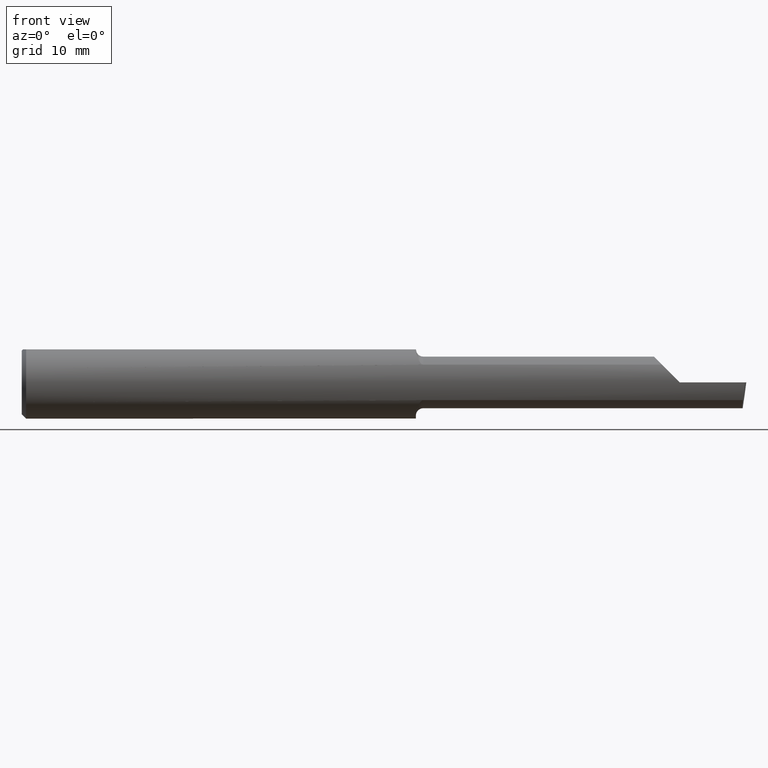
[diagram: clean part render]
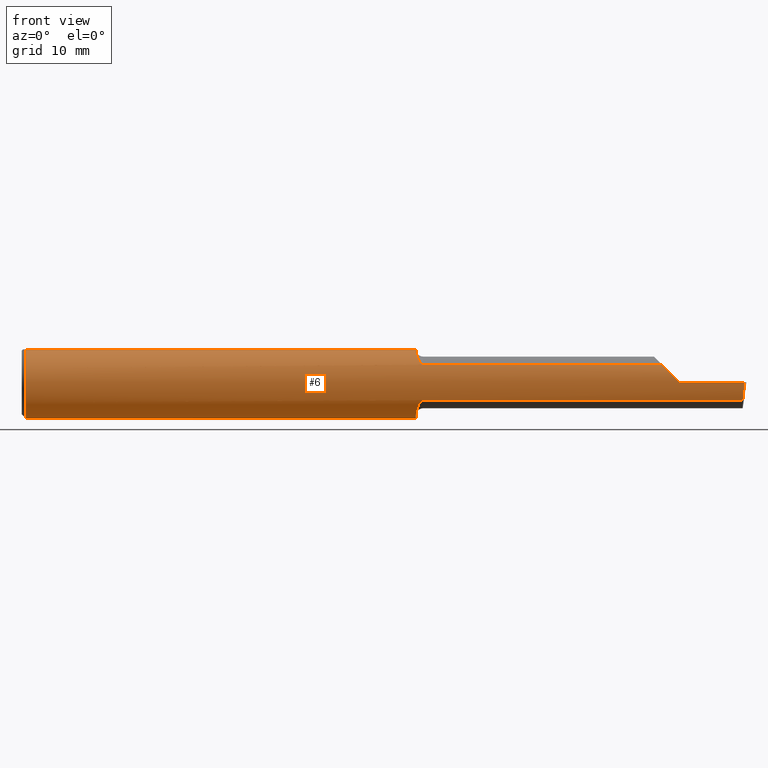
[diagram: same view with one face highlighted and labeled with its STEP entity id]
A machine part, front view. The second image highlights one B-rep face of the part: STEP entity #6.
In plain terms, the highlighted cylindrical surface (edge-blend (fillet) strip) has radius 3.1712 mm, axis along (-1, -0, -0).
Its self-contained STEP definition (entity closure, byte-faithful):
#4 = ORIENTED_EDGE ( 'NONE', *, *, #695, .T. ) ;
#6 = ADVANCED_FACE ( 'NONE', ( #36 ), #538, .T. ) ;
#11 = EDGE_LOOP ( 'NONE', ( #612, #638, #177, #187, #800, #686, #4, #400, #539, #514, #28, #526 ) ) ;
#12 = VERTEX_POINT ( 'NONE', #724 ) ;
#19 = EDGE_CURVE ( 'NONE', #388, #64, #153, .T. ) ;
#28 = ORIENTED_EDGE ( 'NONE', *, *, #417, .F. ) ;
#31 = LINE ( 'NONE', #731, #491 ) ;
#35 = DIRECTION ( 'NONE',  ( 0.000000000000000000, 0.000000000000000000, 1.000000000000000000 ) ) ;
#36 = FACE_OUTER_BOUND ( 'NONE', #11, .T. ) ;
#41 = CARTESIAN_POINT ( 'NONE',  ( 1.361949480984350425, -0.07596136197082524466, 0.09933958580654496384 ) ) ;
#47 = DIRECTION ( 'NONE',  ( -1.000000000000000000, -0.000000000000000000, -0.000000000000000000 ) ) ;
#53 = CARTESIAN_POINT ( 'NONE',  ( 1.381429951084914842, -0.1083820298415333616, 0.06198549150327745810 ) ) ;
#60 = CARTESIAN_POINT ( 'NONE',  ( 2.208790356734260829, -0.1088159090909091992, 0.06120964326573857806 ) ) ;
#64 = VERTEX_POINT ( 'NONE', #275 ) ;
#74 = CARTESIAN_POINT ( 'NONE',  ( 1.360000000000000320, -0.05106022727272754858, -0.1139314517192570597 ) ) ;
#78 = CARTESIAN_POINT ( 'NONE',  ( 1.360000097795984741, -0.05124158467554382895, 0.1138500000000000345 ) ) ;
#87 = CARTESIAN_POINT ( 'NONE',  ( 0.000000000000000000, 0.000000000000000000, 0.000000000000000000 ) ) ;
#89 = CARTESIAN_POINT ( 'NONE',  ( 0.01499999999999999424, 0.05124158467494922820, 0.1138500000000000345 ) ) ;
#93 = DIRECTION ( 'NONE',  ( 1.000000000000000000, 0.000000000000000000, 0.000000000000000000 ) ) ;
#95 = CARTESIAN_POINT ( 'NONE',  ( 1.381430773366643772, -0.1083837666170487657, -0.06198269038834018640 ) ) ;
#101 = CARTESIAN_POINT ( 'NONE',  ( 1.363123628621569994, -0.08156933505717116339, 0.09478144068341098905 ) ) ;
#104 = CARTESIAN_POINT ( 'NONE',  ( 1.834999999999999964, -0.1088159090909092547, -0.06120964326573859193 ) ) ;
#113 = CARTESIAN_POINT ( 'NONE',  ( 1.385000000000000009, -0.1088159090909091020, 0.06120964326573865438 ) ) ;
#136 = AXIS2_PLACEMENT_3D ( 'NONE', #409, #274, #35 ) ;
#153 = LINE ( 'NONE', #788, #202 ) ;
#165 = CARTESIAN_POINT ( 'NONE',  ( 1.374298474000562376, -0.1041086701288377048, 0.06897617952030529742 ) ) ;
#169 = CARTESIAN_POINT ( 'NONE',  ( 2.270000000000000018, -0.1248500000000000165, 2.816687638038912303E-17 ) ) ;
#177 = ORIENTED_EDGE ( 'NONE', *, *, #238, .T. ) ;
#187 = ORIENTED_EDGE ( 'NONE', *, *, #506, .T. ) ;
#189 = AXIS2_PLACEMENT_3D ( 'NONE', #554, #47, #290 ) ;
#200 =( BOUNDED_CURVE ( )  B_SPLINE_CURVE ( 3, ( #387, #763, #769, #60 ),
 .UNSPECIFIED., .F., .T. ) 
 B_SPLINE_CURVE_WITH_KNOTS ( ( 4, 4 ),
 ( 4.712388980384689674, 5.224783288303638251 ),
 .UNSPECIFIED. ) 
 CURVE ( )  GEOMETRIC_REPRESENTATION_ITEM ( )  RATIONAL_B_SPLINE_CURVE ( ( 1.000000000000000000, 0.9782404171696015283, 0.9782404171696015283, 1.000000000000000000 ) ) 
 REPRESENTATION_ITEM ( '' )  );
#202 = VECTOR ( 'NONE', #93, 39.37007874015748143 ) ;
#209 = VERTEX_POINT ( 'NONE', #305 ) ;
#218 = CIRCLE ( 'NONE', #540, 0.1248500000000000026 ) ;
#232 = VECTOR ( 'NONE', #367, 39.37007874015748143 ) ;
#236 = CARTESIAN_POINT ( 'NONE',  ( 1.360007259122735901, -0.05787968516969613231, 0.1108623250892746270 ) ) ;
#238 = EDGE_CURVE ( 'NONE', #519, #239, #740, .T. ) ;
#239 = VERTEX_POINT ( 'NONE', #169 ) ;
#274 = DIRECTION ( 'NONE',  ( -1.000000000000000000, -0.000000000000000000, -0.000000000000000000 ) ) ;
#275 = CARTESIAN_POINT ( 'NONE',  ( 1.360000000000000320, 0.05124158467494921432, 0.1138500000000000206 ) ) ;
#290 = DIRECTION ( 'NONE',  ( 0.000000000000000000, 0.000000000000000000, 1.000000000000000000 ) ) ;
#293 = CARTESIAN_POINT ( 'NONE',  ( 1.366367198475050282, -0.09170680217278594226, 0.08501141308632335913 ) ) ;
#294 =( BOUNDED_CURVE ( )  B_SPLINE_CURVE ( 3, ( #384, #592, #398, #596 ),
 .UNSPECIFIED., .F., .T. ) 
 B_SPLINE_CURVE_WITH_KNOTS ( ( 4, 4 ),
 ( 0.8483525745957783970, 1.360746882514726197 ),
 .UNSPECIFIED. ) 
 CURVE ( )  GEOMETRIC_REPRESENTATION_ITEM ( )  RATIONAL_B_SPLINE_CURVE ( ( 1.000000000000000000, 0.9782404171696016393, 0.9782404171696016393, 1.000000000000000000 ) ) 
 REPRESENTATION_ITEM ( '' )  );
#305 = CARTESIAN_POINT ( 'NONE',  ( 2.208790356734260829, -0.1088159090909091992, 0.06120964326573857806 ) ) ;
#324 = CARTESIAN_POINT ( 'NONE',  ( 1.377418472017428730, -0.1064706388662828851, -0.06522095769404988308 ) ) ;
#341 = EDGE_CURVE ( 'NONE', #684, #519, #294, .T. ) ;
#346 = DIRECTION ( 'NONE',  ( 0.000000000000000000, 0.000000000000000000, -1.000000000000000000 ) ) ;
#358 = CARTESIAN_POINT ( 'NONE',  ( 1.377431632364403580, -0.1064782986023076888, 0.06520809716638668874 ) ) ;
#367 = DIRECTION ( 'NONE',  ( -1.000000000000000000, -0.000000000000000000, -0.000000000000000000 ) ) ;
#369 = VECTOR ( 'NONE', #664, 39.37007874015748143 ) ;
#372 = EDGE_CURVE ( 'NONE', #396, #209, #722, .T. ) ;
#381 = CARTESIAN_POINT ( 'NONE',  ( 1.374260533375047055, -0.1040753176265711150, -0.06902783361385357586 ) ) ;
#384 = CARTESIAN_POINT ( 'NONE',  ( 2.487716879513912627, -0.1088159090909092547, -0.06120964326573859193 ) ) ;
#385 = CARTESIAN_POINT ( 'NONE',  ( 2.494815187529301426, -0.1248500000000000304, -6.610128768667490488E-17 ) ) ;
#387 = CARTESIAN_POINT ( 'NONE',  ( 2.270000000000000018, -0.1248500000000000165, 2.816687638038912303E-17 ) ) ;
#388 = VERTEX_POINT ( 'NONE', #89 ) ;
#396 = VERTEX_POINT ( 'NONE', #650 ) ;
#398 = CARTESIAN_POINT ( 'NONE',  ( 2.492166948426750128, -0.1248500000000000026, -0.02156078579982234622 ) ) ;
#400 = ORIENTED_EDGE ( 'NONE', *, *, #771, .F. ) ;
#403 = CARTESIAN_POINT ( 'NONE',  ( 0.01499999999999999424, 0.000000000000000000, -0.1248500000000000026 ) ) ;
#409 = CARTESIAN_POINT ( 'NONE',  ( 0.01499999999999999424, 0.000000000000000000, 0.000000000000000000 ) ) ;
#412 = CARTESIAN_POINT ( 'NONE',  ( 1.834999999999999964, -0.1088159090909092547, 0.06120964326573859193 ) ) ;
#416 = VERTEX_POINT ( 'NONE', #741 ) ;
#417 = EDGE_CURVE ( 'NONE', #530, #64, #218, .T. ) ;
#422 = AXIS2_PLACEMENT_3D ( 'NONE', #87, #729, #476 ) ;
#426 = CARTESIAN_POINT ( 'NONE',  ( 1.378584160803692171, -0.1072016464447189676, -0.06400548237000643070 ) ) ;
#462 = CARTESIAN_POINT ( 'NONE',  ( 1.366341859756230459, -0.09164079654472227776, -0.08508064213884952709 ) ) ;
#466 = CARTESIAN_POINT ( 'NONE',  ( 1.361502585305459423, -0.07647633808930118238, -0.09967851947582057059 ) ) ;
#471 = CARTESIAN_POINT ( 'NONE',  ( 1.372652750757541895, -0.1022351105670215726, -0.07173965961731933183 ) ) ;
#474 = EDGE_CURVE ( 'NONE', #12, #530, #557, .T. ) ;
#476 = DIRECTION ( 'NONE',  ( 0.000000000000000000, 0.000000000000000000, 1.000000000000000000 ) ) ;
#481 = CARTESIAN_POINT ( 'NONE',  ( 2.487716879513912627, -0.1088159090909092547, -0.06120964326573859193 ) ) ;
#486 = CARTESIAN_POINT ( 'NONE',  ( 1.385000000000000009, -0.1088159090909091020, -0.06120964326573864051 ) ) ;
#491 = VECTOR ( 'NONE', #529, 39.37007874015748143 ) ;
#497 = CARTESIAN_POINT ( 'NONE',  ( 1.372671163500631453, -0.1022596512740079899, 0.07170602318513191742 ) ) ;
#506 = EDGE_CURVE ( 'NONE', #239, #209, #200, .T. ) ;
#512 = VECTOR ( 'NONE', #677, 39.37007874015748143 ) ;
#514 = ORIENTED_EDGE ( 'NONE', *, *, #19, .T. ) ;
#519 = VERTEX_POINT ( 'NONE', #385 ) ;
#520 = CARTESIAN_POINT ( 'NONE',  ( 1.368397821753970067, -0.09628495161689377968, -0.07975604660947223368 ) ) ;
#526 = ORIENTED_EDGE ( 'NONE', *, *, #474, .F. ) ;
#529 = DIRECTION ( 'NONE',  ( -1.000000000000000000, -0.000000000000000000, -0.000000000000000000 ) ) ;
#530 = VERTEX_POINT ( 'NONE', #74 ) ;
#538 = CYLINDRICAL_SURFACE ( 'NONE', #422, 0.1248500000000000026 ) ;
#539 = ORIENTED_EDGE ( 'NONE', *, *, #602, .F. ) ;
#540 = AXIS2_PLACEMENT_3D ( 'NONE', #601, #730, #346 ) ;
#551 = CIRCLE ( 'NONE', #189, 0.1248500000000000026 ) ;
#554 = CARTESIAN_POINT ( 'NONE',  ( 0.01499999999999999424, 0.000000000000000000, 0.000000000000000000 ) ) ;
#557 = B_SPLINE_CURVE_WITH_KNOTS ( 'NONE', 3,
 ( #486, #671, #95, #426, #324, #381, #471, #520, #462, #466, #578, #582 ),
 .UNSPECIFIED., .F., .F.,
 ( 4, 2, 2, 2, 2, 4 ),
 ( 1.958506483896989660E-07, 0.0001392669359846155828, 0.0002783380213208414586, 0.0005564801919932936981, 0.001112764533338197635, 0.002225333216027999654 ),
 .UNSPECIFIED. ) ;
#562 = CARTESIAN_POINT ( 'NONE',  ( 1.360398955714088531, -0.06414339738381669154, 0.1073503907433057819 ) ) ;
#564 = CIRCLE ( 'NONE', #136, 0.1248500000000000026 ) ;
#578 = CARTESIAN_POINT ( 'NONE',  ( 1.360000000000000320, -0.06435233443826816890, -0.1079743783864397094 ) ) ;
#579 = VERTEX_POINT ( 'NONE', #78 ) ;
#582 = CARTESIAN_POINT ( 'NONE',  ( 1.360000000000000320, -0.05106022727272754858, -0.1139314517192570597 ) ) ;
#592 = CARTESIAN_POINT ( 'NONE',  ( 2.489748215127380870, -0.1193864177600011262, -0.04241784104289499785 ) ) ;
#596 = CARTESIAN_POINT ( 'NONE',  ( 2.494815187529301426, -0.1248500000000000304, -6.610128768667490488E-17 ) ) ;
#601 = CARTESIAN_POINT ( 'NONE',  ( 1.360000000000000320, 0.000000000000000000, 0.000000000000000000 ) ) ;
#602 = EDGE_CURVE ( 'NONE', #388, #710, #564, .T. ) ;
#612 = ORIENTED_EDGE ( 'NONE', *, *, #739, .F. ) ;
#630 = CARTESIAN_POINT ( 'NONE',  ( 4.111069666048746882E-31, -0.1248499999999999888, 9.802154982235641300E-16 ) ) ;
#638 = ORIENTED_EDGE ( 'NONE', *, *, #341, .T. ) ;
#650 = CARTESIAN_POINT ( 'NONE',  ( 1.385000000000000009, -0.1088159090909091020, 0.06120964326573865438 ) ) ;
#664 = DIRECTION ( 'NONE',  ( 1.000000000000000000, 0.000000000000000000, 0.000000000000000000 ) ) ;
#671 = CARTESIAN_POINT ( 'NONE',  ( 1.383136503623038083, -0.1088159090909092269, -0.06120964326573865438 ) ) ;
#674 = CARTESIAN_POINT ( 'NONE',  ( 1.368377233828253825, -0.09625857022060833879, 0.07979273349069970767 ) ) ;
#677 = DIRECTION ( 'NONE',  ( -1.000000000000000000, -0.000000000000000000, -0.000000000000000000 ) ) ;
#684 = VERTEX_POINT ( 'NONE', #481 ) ;
#686 = ORIENTED_EDGE ( 'NONE', *, *, #777, .F. ) ;
#695 = EDGE_CURVE ( 'NONE', #579, #416, #31, .T. ) ;
#697 = B_SPLINE_CURVE_WITH_KNOTS ( 'NONE', 3,
 ( #811, #236, #562, #41, #101, #293, #674, #497, #165, #358, #751, #53, #746, #113 ),
 .UNSPECIFIED., .F., .F.,
 ( 4, 2, 2, 2, 2, 2, 4 ),
 ( 4.804672440282616467E-07, 0.0005473133578846771981, 0.001094146248525326021, 0.001640979139165974843, 0.001914395584486299580, 0.002051103807146468453, 0.002187812029806636676 ),
 .UNSPECIFIED. ) ;
#710 = VERTEX_POINT ( 'NONE', #403 ) ;
#722 = LINE ( 'NONE', #412, #369 ) ;
#724 = CARTESIAN_POINT ( 'NONE',  ( 1.385000000000000009, -0.1088159090909091020, -0.06120964326573864051 ) ) ;
#729 = DIRECTION ( 'NONE',  ( -1.000000000000000000, -0.000000000000000000, -0.000000000000000000 ) ) ;
#730 = DIRECTION ( 'NONE',  ( 1.000000000000000000, 0.000000000000000000, 0.000000000000000000 ) ) ;
#731 = CARTESIAN_POINT ( 'NONE',  ( 0.000000000000000000, -0.05124158467494919350, 0.1138500000000000345 ) ) ;
#739 = EDGE_CURVE ( 'NONE', #684, #12, #742, .T. ) ;
#740 = LINE ( 'NONE', #630, #512 ) ;
#741 = CARTESIAN_POINT ( 'NONE',  ( 0.01499999999999998730, -0.05124158467494919350, 0.1138500000000000345 ) ) ;
#742 = LINE ( 'NONE', #104, #232 ) ;
#746 = CARTESIAN_POINT ( 'NONE',  ( 1.383151621368557738, -0.1088159090914119359, 0.06120964326484515383 ) ) ;
#751 = CARTESIAN_POINT ( 'NONE',  ( 1.378607476457615721, -0.1072127130250407068, 0.06398671514685039252 ) ) ;
#763 = CARTESIAN_POINT ( 'NONE',  ( 2.248439214200177894, -0.1248500000000000026, 0.02156078579982224561 ) ) ;
#769 = CARTESIAN_POINT ( 'NONE',  ( 2.227582158957104319, -0.1193864177600011539, 0.04241784104289492846 ) ) ;
#771 = EDGE_CURVE ( 'NONE', #710, #416, #551, .T. ) ;
#777 = EDGE_CURVE ( 'NONE', #579, #396, #697, .T. ) ;
#788 = CARTESIAN_POINT ( 'NONE',  ( 0.000000000000000000, 0.05124158467494922820, 0.1138500000000000345 ) ) ;
#800 = ORIENTED_EDGE ( 'NONE', *, *, #372, .F. ) ;
#811 = CARTESIAN_POINT ( 'NONE',  ( 1.360000097795984741, -0.05124158467554382895, 0.1138500000000000345 ) ) ;